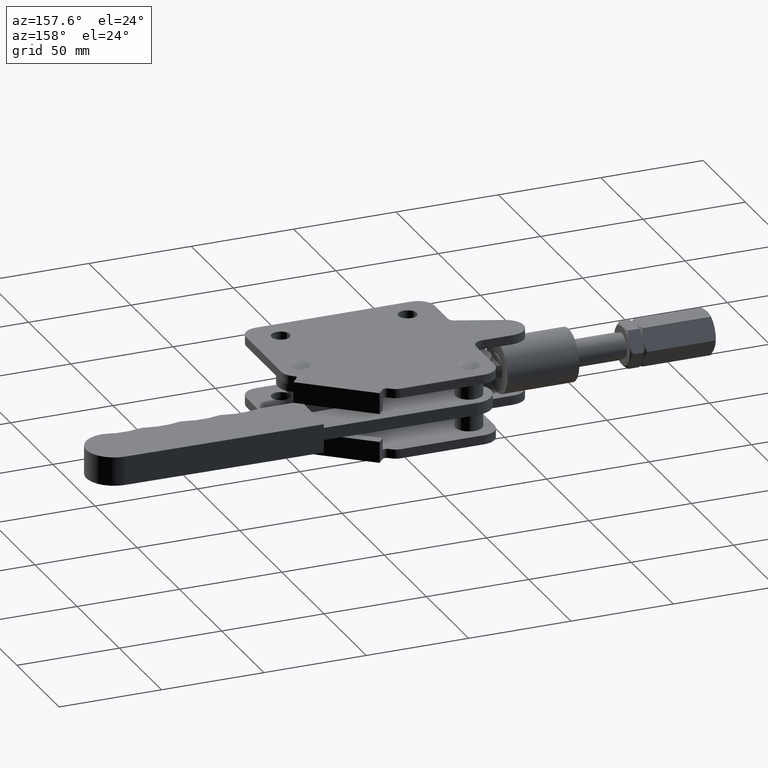
[diagram: clean part render]
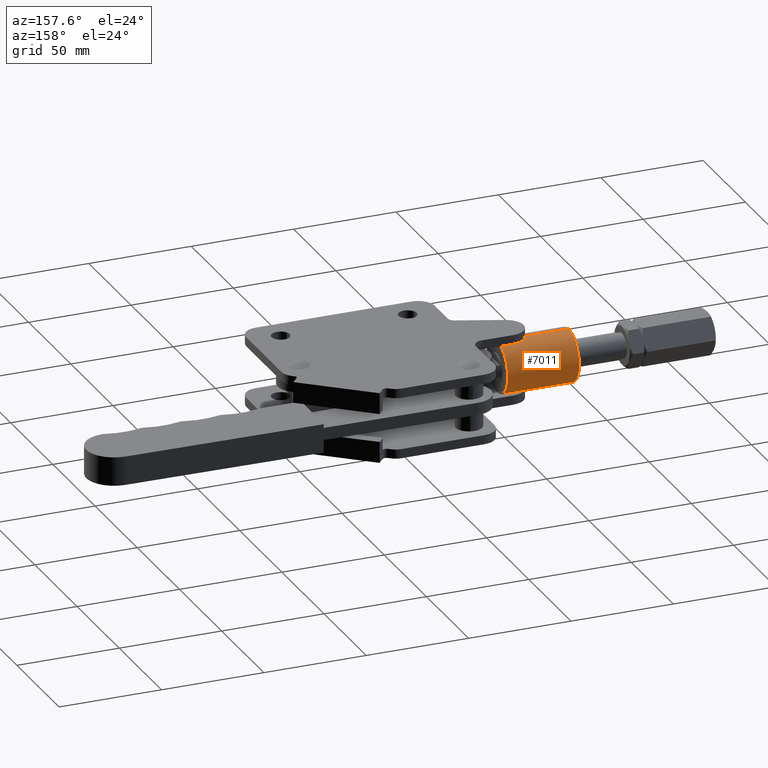
[diagram: same view with one face highlighted and labeled with its STEP entity id]
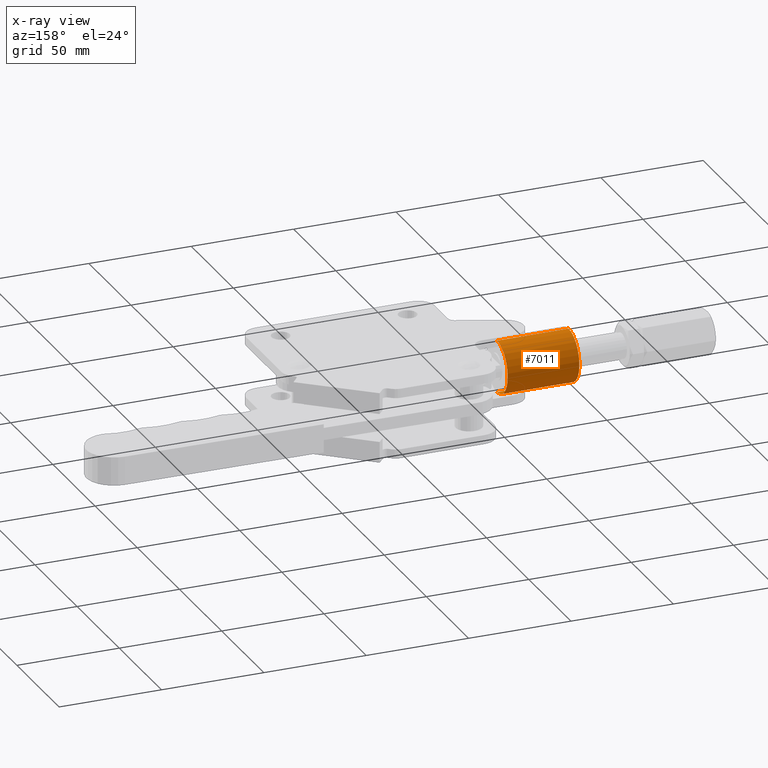
[diagram: x-ray of the same camera — body ghosted, the highlighted face saturated]
A machine part, auxiliary view. The second image highlights one B-rep face of the part: STEP entity #7011.
The next image is the same camera in x-ray: the body ghosted, the highlighted face saturated — about 0% of this face is hidden behind the body in this view.
In plain terms, the highlighted cylindrical surface (edge-blend (fillet) strip) has radius 12.7 mm, axis along (-1, -0, -0).
Its self-contained STEP definition (entity closure, byte-faithful):
#505 = AXIS2_PLACEMENT_3D ( 'NONE', #4439, #1329, #6914 ) ;
#624 = VECTOR ( 'NONE', #1517, 1000.000000000000000 ) ;
#915 = CARTESIAN_POINT ( 'NONE',  ( -142.0000001797797600, 24.00000000000000000, -17.19999999999998500 ) ) ;
#966 = CARTESIAN_POINT ( 'NONE',  ( -107.0000001797797600, 24.00000000000000000, -4.499999999999986700 ) ) ;
#1329 = DIRECTION ( 'NONE',  ( -1.000000000000000000, -0.0000000000000000000, -0.0000000000000000000 ) ) ;
#1500 = EDGE_CURVE ( 'NONE', #4917, #2781, #5568, .T. ) ;
#1503 = CARTESIAN_POINT ( 'NONE',  ( -142.0000001797797600, 24.00000000000000000, -4.499999999999986700 ) ) ;
#1517 = DIRECTION ( 'NONE',  ( -1.000000000000000000, -0.0000000000000000000, -0.0000000000000000000 ) ) ;
#1535 = DIRECTION ( 'NONE',  ( 0.0000000000000000000, 0.0000000000000000000, -1.000000000000000000 ) ) ;
#1601 = EDGE_CURVE ( 'NONE', #6858, #4917, #6830, .T. ) ;
#1603 = ORIENTED_EDGE ( 'NONE', *, *, #1601, .F. ) ;
#1608 = AXIS2_PLACEMENT_3D ( 'NONE', #2874, #7196, #3476 ) ;
#2198 = AXIS2_PLACEMENT_3D ( 'NONE', #915, #5265, #1535 ) ;
#2596 = FACE_OUTER_BOUND ( 'NONE', #3803, .T. ) ;
#2773 = LINE ( 'NONE', #7980, #7721 ) ;
#2779 = VERTEX_POINT ( 'NONE', #5217 ) ;
#2781 = VERTEX_POINT ( 'NONE', #1503 ) ;
#2874 = CARTESIAN_POINT ( 'NONE',  ( -107.0000001797797600, 24.00000000000000000, -17.19999999999998500 ) ) ;
#3016 = CARTESIAN_POINT ( 'NONE',  ( -107.0000001797797600, 24.00000000000000000, -29.89999999999998400 ) ) ;
#3476 = DIRECTION ( 'NONE',  ( 0.0000000000000000000, 0.0000000000000000000, -1.000000000000000000 ) ) ;
#3569 = ORIENTED_EDGE ( 'NONE', *, *, #1500, .F. ) ;
#3640 = DIRECTION ( 'NONE',  ( -1.000000000000000000, -0.0000000000000000000, -0.0000000000000000000 ) ) ;
#3803 = EDGE_LOOP ( 'NONE', ( #1603, #6791, #4136, #3569 ) ) ;
#3936 = CIRCLE ( 'NONE', #2198, 12.69999999999999900 ) ;
#3952 = CARTESIAN_POINT ( 'NONE',  ( -107.0000001797797600, 24.00000000000000000, -4.499999999999986700 ) ) ;
#4136 = ORIENTED_EDGE ( 'NONE', *, *, #4834, .T. ) ;
#4439 = CARTESIAN_POINT ( 'NONE',  ( -107.0000001797797600, 24.00000000000000000, -17.19999999999998500 ) ) ;
#4834 = EDGE_CURVE ( 'NONE', #2779, #2781, #3936, .T. ) ;
#4917 = VERTEX_POINT ( 'NONE', #966 ) ;
#5217 = CARTESIAN_POINT ( 'NONE',  ( -142.0000001797797600, 24.00000000000000000, -29.89999999999998400 ) ) ;
#5265 = DIRECTION ( 'NONE',  ( 1.000000000000000000, 0.0000000000000000000, 0.0000000000000000000 ) ) ;
#5568 = LINE ( 'NONE', #3952, #624 ) ;
#5695 = CYLINDRICAL_SURFACE ( 'NONE', #505, 12.69999999999999900 ) ;
#6791 = ORIENTED_EDGE ( 'NONE', *, *, #7507, .T. ) ;
#6830 = CIRCLE ( 'NONE', #1608, 12.69999999999999900 ) ;
#6858 = VERTEX_POINT ( 'NONE', #3016 ) ;
#6914 = DIRECTION ( 'NONE',  ( 0.0000000000000000000, 0.0000000000000000000, 1.000000000000000000 ) ) ;
#7011 = ADVANCED_FACE ( 'NONE', ( #2596 ), #5695, .T. ) ;
#7196 = DIRECTION ( 'NONE',  ( 1.000000000000000000, 0.0000000000000000000, 0.0000000000000000000 ) ) ;
#7507 = EDGE_CURVE ( 'NONE', #6858, #2779, #2773, .T. ) ;
#7721 = VECTOR ( 'NONE', #3640, 1000.000000000000000 ) ;
#7980 = CARTESIAN_POINT ( 'NONE',  ( -107.0000001797797600, 24.00000000000000000, -29.89999999999998400 ) ) ;